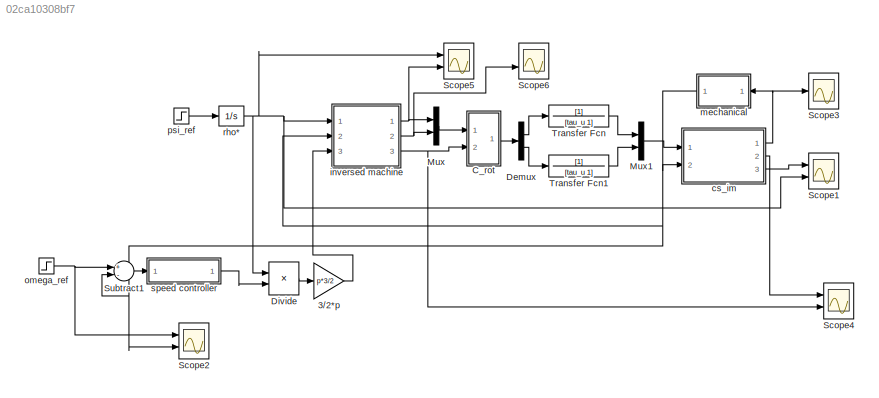
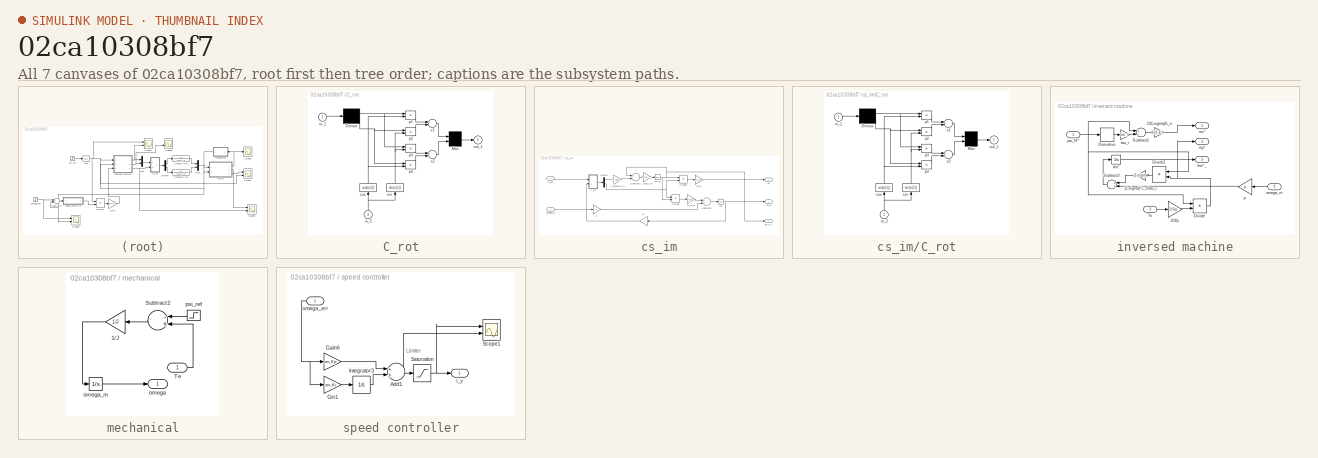
[diagram: thumbnail index - all 7 canvases of the model, root first then tree order]
MODEL slx_02ca10308bf7
KIND model
CONFIG AbsTol = auto
CONFIG EnableMultiTasking = off
CONFIG FixedStep = 1e-5
CONFIG MaxStep = auto
CONFIG MinStep = auto
CONFIG RelTol = 1e-5
CONFIG SampleTimeConstraint = Unconstrained
CONFIG Solver = ode45
CONFIG SolverName = ode45
CONFIG StartTime = 0.0
CONFIG StopTime = 5
BLOCK [Gain] 3//2*p
  Gain = p*3/2
BLOCK [SubSystem] C_rot
  Ports = [2, 1]
  RequestExecContextInheritance = off
  ShowPortLabels = none
BLOCK [Demux] C_rot/Demux
  Outputs = 2
  Ports = [1, 2]
BLOCK [Mux] C_rot/Mux
  Inputs = 2
  Ports = [2, 1]
BLOCK [Fcn] C_rot/cos
  Expr = cos(u(1))
BLOCK [Inport] C_rot/in_1
  IconDisplay = Port number
BLOCK [Inport] C_rot/in_2
  IconDisplay = Port number
  Port = 2
BLOCK [Outport] C_rot/out_1
  IconDisplay = Port number
BLOCK [Product] C_rot/p1
  Ports = [2, 1]
BLOCK [Product] C_rot/p2
  Ports = [2, 1]
BLOCK [Product] C_rot/p3
  Ports = [2, 1]
BLOCK [Product] C_rot/p4
  Ports = [2, 1]
BLOCK [Sum] C_rot/s1
  Inputs = +-
  Ports = [2, 1]
BLOCK [Sum] C_rot/s2
  Ports = [2, 1]
BLOCK [Fcn] C_rot/sin
  Expr = sin(u(1))
BLOCK [Demux] Demux
  DisplayOption = bar
  Outputs = 2
  Ports = [1, 2]
BLOCK [Product] Divide
  InputSameDT = off
  Inputs = **
  OutDataTypeStr = Inherit: Inherit via internal rule
  Ports = [2, 1]
  RndMeth = Floor
  SaturateOnIntegerOverflow = off
BLOCK [Mux] Mux
  DisplayOption = bar
  Inputs = 2
  Ports = [2, 1]
BLOCK [Mux] Mux1
  DisplayOption = bar
  Inputs = 2
  Ports = [2, 1]
BLOCK [Scope] Scope1
  Floating = off
  NumInputPorts = 2
  Ports = [2]
  ScopeSpecificationString = Simulink.scopes.TimeScopeBlockCfg('CurrentConfiguration', extmgr.ConfigurationSet(extmgr.Configuration('Core','General UI',true),extmgr.Configuration('Core','Source UI',true),extmgr.Configuration('Sources','WiredSimulink',true,'DataLoggingVariableName','ScopeData1'),extmgr.Configuration('Visuals','Time Domain',true,'SerializedDisplays',{struct('MinYLimReal','-0.22814','MaxYLimReal','2.05429','YLab...<+1804ch>
BLOCK [Scope] Scope2
  Floating = off
  NumInputPorts = 2
  Ports = [2]
  ScopeSpecificationString = Simulink.scopes.TimeScopeBlockCfg('CurrentConfiguration', extmgr.ConfigurationSet(extmgr.Configuration('Core','General UI',true),extmgr.Configuration('Core','Source UI',true),extmgr.Configuration('Sources','WiredSimulink',true,'DataLoggingVariableName','ScopeData2'),extmgr.Configuration('Visuals','Time Domain',true,'SerializedDisplays',{struct('MinYLimReal','-37.55449','MaxYLimReal','337.99039','Y...<+1795ch>
BLOCK [Scope] Scope3
  Floating = off
  NumInputPorts = 1
  Ports = [1]
  ScopeSpecificationString = Simulink.scopes.TimeScopeBlockCfg('CurrentConfiguration', extmgr.ConfigurationSet(extmgr.Configuration('Core','General UI',true),extmgr.Configuration('Core','Source UI',true),extmgr.Configuration('Sources','WiredSimulink',true,'DataLoggingVariableName','ScopeData3'),extmgr.Configuration('Visuals','Time Domain',true,'SerializedDisplays',{struct('MinYLimReal','112.61668','MaxYLimReal','159.44287','Y...<+1751ch>
BLOCK [Scope] Scope4
  Floating = off
  NumInputPorts = 2
  Ports = [2]
  ScopeSpecificationString = Simulink.scopes.TimeScopeBlockCfg('CurrentConfiguration', extmgr.ConfigurationSet(extmgr.Configuration('Core','General UI',true),extmgr.Configuration('Core','Source UI',true),extmgr.Configuration('Sources','WiredSimulink',true,'DataLoggingVariableName','ScopeData4'),extmgr.Configuration('Visuals','Time Domain',true,'SerializedDisplays',{struct('MinYLimReal','-1922.97605','MaxYLimReal','17306.78442...<+1817ch>
BLOCK [Scope] Scope5
  Floating = off
  NumInputPorts = 2
  Ports = [2]
  ScopeSpecificationString = Simulink.scopes.TimeScopeBlockCfg('CurrentConfiguration', extmgr.ConfigurationSet(extmgr.Configuration('Core','General UI',true),extmgr.Configuration('Core','Source UI',true),extmgr.Configuration('Sources','WiredSimulink',true,'DataLoggingVariableName','ScopeData5'),extmgr.Configuration('Visuals','Time Domain',true,'SerializedDisplays',{struct('MinYLimReal','-15.16838','MaxYLimReal','136.51638','Y...<+1798ch>
BLOCK [Scope] Scope6
  Floating = off
  NumInputPorts = 2
  Ports = [2]
  ScopeSpecificationString = Simulink.scopes.TimeScopeBlockCfg('CurrentConfiguration', extmgr.ConfigurationSet(extmgr.Configuration('Core','General UI',true),extmgr.Configuration('Core','Source UI',true),extmgr.Configuration('Sources','WiredSimulink',true,'DataLoggingVariableName','ScopeData6'),extmgr.Configuration('Visuals','Time Domain',true,'SerializedDisplays',{struct('MinYLimReal','-46.57397','MaxYLimReal','141.286','YLa...<+1795ch>
BLOCK [Sum] Subtract1
  InputSameDT = off
  Inputs = +-
  OutDataTypeStr = Inherit: Inherit via internal rule
  Ports = [2, 1]
  SaturateOnIntegerOverflow = off
BLOCK [TransferFcn] Transfer Fcn
  Denominator = [tau_u 1]
BLOCK [TransferFcn] Transfer Fcn1
  Denominator = [tau_u 1]
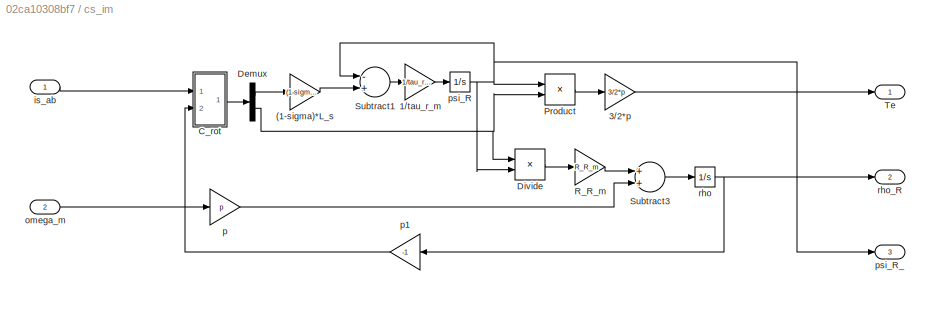
BLOCK [SubSystem] cs_im
  Ports = [2, 3]
  RequestExecContextInheritance = off
BLOCK [Gain] cs_im/(1-sigma)*L_s
  Gain = (1-sigma)*L_s
BLOCK [Gain] cs_im/1//tau_r_m
  Gain = 1/tau_r_m
BLOCK [Gain] cs_im/3//2*p
  Gain = 3/2*p
BLOCK [SubSystem] cs_im/C_rot
  Ports = [2, 1]
  RequestExecContextInheritance = off
  ShowPortLabels = none
BLOCK [Demux] cs_im/C_rot/Demux
  Outputs = 2
  Ports = [1, 2]
BLOCK [Mux] cs_im/C_rot/Mux
  Inputs = 2
  Ports = [2, 1]
BLOCK [Fcn] cs_im/C_rot/cos
  Expr = cos(u(1))
BLOCK [Inport] cs_im/C_rot/in_1
  IconDisplay = Port number
BLOCK [Inport] cs_im/C_rot/in_2
  IconDisplay = Port number
  Port = 2
BLOCK [Outport] cs_im/C_rot/out_1
  IconDisplay = Port number
BLOCK [Product] cs_im/C_rot/p1
  Ports = [2, 1]
BLOCK [Product] cs_im/C_rot/p2
  Ports = [2, 1]
BLOCK [Product] cs_im/C_rot/p3
  Ports = [2, 1]
BLOCK [Product] cs_im/C_rot/p4
  Ports = [2, 1]
BLOCK [Sum] cs_im/C_rot/s1
  Inputs = +-
  Ports = [2, 1]
BLOCK [Sum] cs_im/C_rot/s2
  Ports = [2, 1]
BLOCK [Fcn] cs_im/C_rot/sin
  Expr = sin(u(1))
BLOCK [Demux] cs_im/Demux
  DisplayOption = bar
  Outputs = 2
  Ports = [1, 2]
BLOCK [Product] cs_im/Divide
  InputSameDT = off
  Inputs = */
  OutDataTypeStr = Inherit: Inherit via internal rule
  Ports = [2, 1]
  RndMeth = Floor
  SaturateOnIntegerOverflow = off
BLOCK [Product] cs_im/Product
  InputSameDT = off
  OutDataTypeStr = Inherit: Inherit via internal rule
  Ports = [2, 1]
  RndMeth = Floor
  SaturateOnIntegerOverflow = off
BLOCK [Gain] cs_im/R_R_m
  Gain = R_R_m
BLOCK [Sum] cs_im/Subtract1
  InputSameDT = off
  Inputs = -+
  OutDataTypeStr = Inherit: Inherit via internal rule
  Ports = [2, 1]
  SaturateOnIntegerOverflow = off
BLOCK [Sum] cs_im/Subtract3
  InputSameDT = off
  OutDataTypeStr = Inherit: Inherit via internal rule
  Ports = [2, 1]
  SaturateOnIntegerOverflow = off
BLOCK [Outport] cs_im/Te
  IconDisplay = Port number
BLOCK [Inport] cs_im/is_ab
  IconDisplay = Port number
BLOCK [Inport] cs_im/omega_m
  IconDisplay = Port number
  Port = 2
BLOCK [Gain] cs_im/p
  Gain = p
BLOCK [Gain] cs_im/p1
  Gain = -1
BLOCK [Integrator] cs_im/psi_R
  InitialCondition = psi_R0
  Ports = [1, 1]
BLOCK [Outport] cs_im/psi_R_
  IconDisplay = Port number
  Port = 3
BLOCK [Integrator] cs_im/rho
  InitialCondition = rho_0
  Ports = [1, 1]
BLOCK [Outport] cs_im/rho_R
  IconDisplay = Port number
  Port = 2
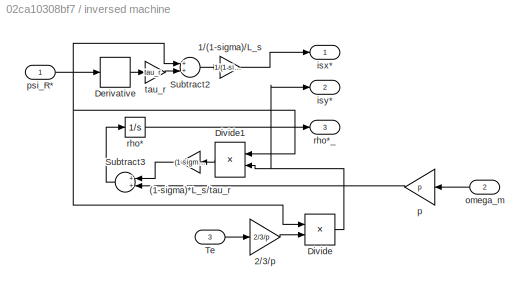
BLOCK [SubSystem] inversed machine
  Ports = [3, 3]
  RequestExecContextInheritance = off
BLOCK [Gain] inversed machine/(1-sigma)*L_s//tau_r
  Gain = (1-sigma)*L_s/tau_r
BLOCK [Gain] inversed machine/1//(1-sigma)//L_s
  Gain = 1/(1-sigma)/L_s
BLOCK [Gain] inversed machine/2//3//p
  Gain = 2/3/p
BLOCK [Derivative] inversed machine/Derivative
BLOCK [Product] inversed machine/Divide
  InputSameDT = off
  Inputs = /*
  OutDataTypeStr = Inherit: Inherit via internal rule
  Ports = [2, 1]
  RndMeth = Floor
  SaturateOnIntegerOverflow = off
BLOCK [Product] inversed machine/Divide1
  InputSameDT = off
  Inputs = /*
  OutDataTypeStr = Inherit: Inherit via internal rule
  Ports = [2, 1]
  RndMeth = Floor
  SaturateOnIntegerOverflow = off
BLOCK [Sum] inversed machine/Subtract2
  InputSameDT = off
  OutDataTypeStr = Inherit: Inherit via internal rule
  Ports = [2, 1]
  SaturateOnIntegerOverflow = off
BLOCK [Sum] inversed machine/Subtract3
  InputSameDT = off
  OutDataTypeStr = Inherit: Inherit via internal rule
  Ports = [2, 1]
  SaturateOnIntegerOverflow = off
BLOCK [Inport] inversed machine/Te
  IconDisplay = Port number
  Port = 3
BLOCK [Outport] inversed machine/isx*
  IconDisplay = Port number
BLOCK [Outport] inversed machine/isy*
  IconDisplay = Port number
  Port = 2
BLOCK [Inport] inversed machine/omega_m
  IconDisplay = Port number
  Port = 2
BLOCK [Gain] inversed machine/p
  Gain = p
BLOCK [Inport] inversed machine/psi_R*
  IconDisplay = Port number
BLOCK [Integrator] inversed machine/rho*
  Ports = [1, 1]
BLOCK [Outport] inversed machine/rho*_
  IconDisplay = Port number
  Port = 3
BLOCK [Gain] inversed machine/tau_r
  Gain = tau_r
BLOCK [SubSystem] mechanical
  Ports = [1, 1]
  RequestExecContextInheritance = off
BLOCK [Gain] mechanical/1//J
  Gain = 1/J
BLOCK [Sum] mechanical/Subtract2
  InputSameDT = off
  Inputs = -+
  OutDataTypeStr = Inherit: Inherit via internal rule
  Ports = [2, 1]
  SaturateOnIntegerOverflow = off
BLOCK [Inport] mechanical/Te
  IconDisplay = Port number
BLOCK [Outport] mechanical/omega
  IconDisplay = Port number
BLOCK [Integrator] mechanical/omega_m
  Ports = [1, 1]
BLOCK [Step] mechanical/psi_ref
  After = T_L
  SampleTime = 0
  Time = t_l
BLOCK [Step] omega_ref
  After = omega_ref
  SampleTime = 0
  Time = 0.1
BLOCK [Step] psi_ref
  After = 31
  SampleTime = 0
  Time = 0.01
BLOCK [Integrator] rho*
  InitialCondition = psi_R0
  LimitOutput = on
  Ports = [1, 1]
  UpperSaturationLimit = 0.816
BLOCK [SubSystem] speed controller
  Ports = [1, 1]
  RequestExecContextInheritance = off
BLOCK [Sum] speed controller/Add1
  InputSameDT = off
  OutDataTypeStr = Inherit: Inherit via internal rule
  Ports = [2, 1]
  SaturateOnIntegerOverflow = off
BLOCK [Gain] speed controller/Gain6
  Gain = om_Kp
  OutDataTypeStr = Inherit: Inherit via internal rule
  ParamDataTypeStr = Inherit: Inherit via internal rule
  SaturateOnIntegerOverflow = off
BLOCK [Gain] speed controller/Gin1
  Gain = om_Ki
  OutDataTypeStr = Inherit: Inherit via internal rule
  ParamDataTypeStr = Inherit: Inherit via internal rule
  SaturateOnIntegerOverflow = off
BLOCK [Integrator] speed controller/Integrator3
  LimitOutput = on
  LowerSaturationLimit = -122.5
  Ports = [1, 1]
  UpperSaturationLimit = 122.5
BLOCK [Saturate] speed controller/Saturation
  InputPortMap = u0
  LowerLimit = -122.5
  Ports = [1, 1]
  UpperLimit = 122.5
  ZeroCross = off
BLOCK [Scope] speed controller/Scope1
  Floating = off
  NumInputPorts = 2
  Ports = [2]
  ScopeSpecificationString = Simulink.scopes.TimeScopeBlockCfg('CurrentConfiguration', extmgr.ConfigurationSet(extmgr.Configuration('Core','General UI',true),extmgr.Configuration('Core','Source UI',true),extmgr.Configuration('Sources','WiredSimulink',true,'DataLoggingVariableName','ScopeData3'),extmgr.Configuration('Visuals','Time Domain',true,'SerializedDisplays',{struct('MinYLimReal','-1.10582','MaxYLimReal','9.95235','YLab...<+1449ch>
BLOCK [Outport] speed controller/i_y
  IconDisplay = Port number
BLOCK [Inport] speed controller/omega_err
  IconDisplay = Port number
ANNOTATION speed controller: Limiter
LINE 3//2*p:1 -> inversed machine:3
NET C_rot/Demux:1 -> C_rot/p1:1, C_rot/p3:1
NET C_rot/Demux:2 -> C_rot/p2:1, C_rot/p4:1
LINE C_rot/Mux:1 -> C_rot/out_1:1
NET C_rot/cos:1 -> C_rot/p1:2, C_rot/p4:2
LINE C_rot/in_1:1 -> C_rot/Demux:1
NET C_rot/in_2:1 -> C_rot/cos:1, C_rot/sin:1
LINE C_rot/p1:1 -> C_rot/s1:1
LINE C_rot/p2:1 -> C_rot/s1:2
LINE C_rot/p3:1 -> C_rot/s2:1
LINE C_rot/p4:1 -> C_rot/s2:2
LINE C_rot/s1:1 -> C_rot/Mux:1
LINE C_rot/s2:1 -> C_rot/Mux:2
NET C_rot/sin:1 -> C_rot/p2:2, C_rot/p3:2
LINE C_rot:1 -> Demux:1
LINE Demux:1 -> Transfer Fcn:1
LINE Demux:2 -> Transfer Fcn1:1
LINE Divide:1 -> 3//2*p:1
LINE Mux1:1 -> cs_im:1
LINE Mux:1 -> C_rot:1
LINE Subtract1:1 -> speed controller:1
LINE Transfer Fcn1:1 -> Mux1:2
LINE Transfer Fcn:1 -> Mux1:1
LINE cs_im/(1-sigma)*L_s:1 -> cs_im/Subtract1:2
LINE cs_im/1//tau_r_m:1 -> cs_im/psi_R:1
LINE cs_im/3//2*p:1 -> cs_im/Te:1
NET cs_im/C_rot/Demux:1 -> cs_im/C_rot/p1:1, cs_im/C_rot/p3:1
NET cs_im/C_rot/Demux:2 -> cs_im/C_rot/p2:1, cs_im/C_rot/p4:1
LINE cs_im/C_rot/Mux:1 -> cs_im/C_rot/out_1:1
NET cs_im/C_rot/cos:1 -> cs_im/C_rot/p1:2, cs_im/C_rot/p4:2
LINE cs_im/C_rot/in_1:1 -> cs_im/C_rot/Demux:1
NET cs_im/C_rot/in_2:1 -> cs_im/C_rot/cos:1, cs_im/C_rot/sin:1
LINE cs_im/C_rot/p1:1 -> cs_im/C_rot/s1:1
LINE cs_im/C_rot/p2:1 -> cs_im/C_rot/s1:2
LINE cs_im/C_rot/p3:1 -> cs_im/C_rot/s2:1
LINE cs_im/C_rot/p4:1 -> cs_im/C_rot/s2:2
LINE cs_im/C_rot/s1:1 -> cs_im/C_rot/Mux:1
LINE cs_im/C_rot/s2:1 -> cs_im/C_rot/Mux:2
NET cs_im/C_rot/sin:1 -> cs_im/C_rot/p2:2, cs_im/C_rot/p3:2
LINE cs_im/C_rot:1 -> cs_im/Demux:1
LINE cs_im/Demux:1 -> cs_im/(1-sigma)*L_s:1
NET cs_im/Demux:2 -> cs_im/Divide:1, cs_im/Product:2
LINE cs_im/Divide:1 -> cs_im/R_R_m:1
LINE cs_im/Product:1 -> cs_im/3//2*p:1
LINE cs_im/R_R_m:1 -> cs_im/Subtract3:1
LINE cs_im/Subtract1:1 -> cs_im/1//tau_r_m:1
LINE cs_im/Subtract3:1 -> cs_im/rho:1
LINE cs_im/is_ab:1 -> cs_im/C_rot:1
LINE cs_im/omega_m:1 -> cs_im/p:1
LINE cs_im/p1:1 -> cs_im/C_rot:2
LINE cs_im/p:1 -> cs_im/Subtract3:2
NET cs_im/psi_R:1 -> cs_im/Divide:2, cs_im/Product:1, cs_im/Subtract1:1, cs_im/psi_R_:1
NET cs_im/rho:1 -> cs_im/p1:1, cs_im/rho_R:1
NET cs_im:1 -> Scope3:1, mechanical:1
LINE cs_im:2 -> Scope4:1
LINE cs_im:3 -> Scope1:1
LINE inversed machine/(1-sigma)*L_s//tau_r:1 -> inversed machine/Subtract3:1
LINE inversed machine/1//(1-sigma)//L_s:1 -> inversed machine/isx*:1
LINE inversed machine/2//3//p:1 -> inversed machine/Divide:2
LINE inversed machine/Derivative:1 -> inversed machine/tau_r:1
LINE inversed machine/Divide1:1 -> inversed machine/(1-sigma)*L_s//tau_r:1
NET inversed machine/Divide:1 -> inversed machine/Divide1:2, inversed machine/isy*:1
LINE inversed machine/Subtract2:1 -> inversed machine/1//(1-sigma)//L_s:1
LINE inversed machine/Subtract3:1 -> inversed machine/rho*:1
LINE inversed machine/Te:1 -> inversed machine/2//3//p:1
LINE inversed machine/omega_m:1 -> inversed machine/p:1
LINE inversed machine/p:1 -> inversed machine/Subtract3:2
NET inversed machine/psi_R*:1 -> inversed machine/Derivative:1, inversed machine/Divide1:1, inversed machine/Divide:1, inversed machine/Subtract2:1
LINE inversed machine/rho*:1 -> inversed machine/rho*_:1
LINE inversed machine/tau_r:1 -> inversed machine/Subtract2:2
NET inversed machine:1 -> Mux:1, Scope5:2
NET inversed machine:2 -> Mux:2, Scope6:2
NET inversed machine:3 -> C_rot:2, Scope4:2
LINE mechanical/1//J:1 -> mechanical/omega_m:1
LINE mechanical/Subtract2:1 -> mechanical/1//J:1
LINE mechanical/Te:1 -> mechanical/Subtract2:2
LINE mechanical/omega_m:1 -> mechanical/omega:1
LINE mechanical/psi_ref:1 -> mechanical/Subtract2:1
NET mechanical:1 -> Scope2:2, Subtract1:2, cs_im:2, inversed machine:2
NET omega_ref:1 -> Scope2:1, Subtract1:1
LINE psi_ref:1 -> rho*:1
NET rho*:1 -> Divide:1, Scope1:2, Scope5:1, inversed machine:1
NET speed controller/Add1:1 -> speed controller/Saturation:1, speed controller/Scope1:2
LINE speed controller/Gain6:1 -> speed controller/Add1:1
LINE speed controller/Gin1:1 -> speed controller/Integrator3:1
LINE speed controller/Integrator3:1 -> speed controller/Add1:2
NET speed controller/Saturation:1 -> speed controller/Scope1:1, speed controller/i_y:1
NET speed controller/omega_err:1 -> speed controller/Gain6:1, speed controller/Gin1:1
LINE speed controller:1 -> Divide:2
note: NET lines group one-source signal fan-out (src -> all destinations, sorted); 1:1 wires keep LINE
